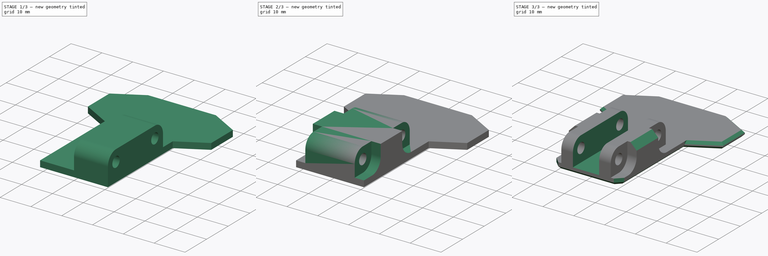
[diagram: build sequence overview — one tinted view per stage of 3, left to right]
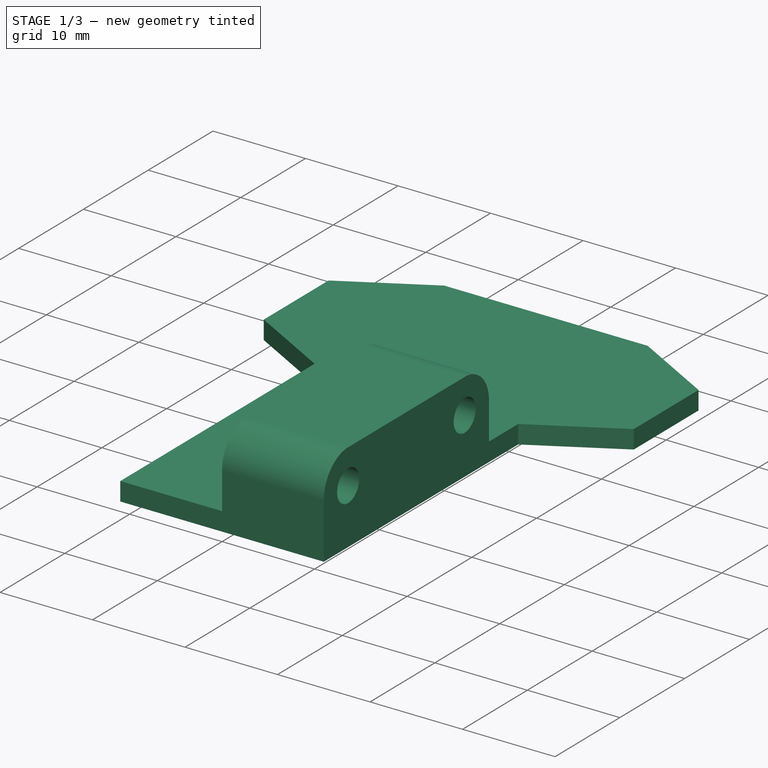
[diagram: stage 1 of 3 — iso view after this stage's code; geometry added in this stage tinted green]
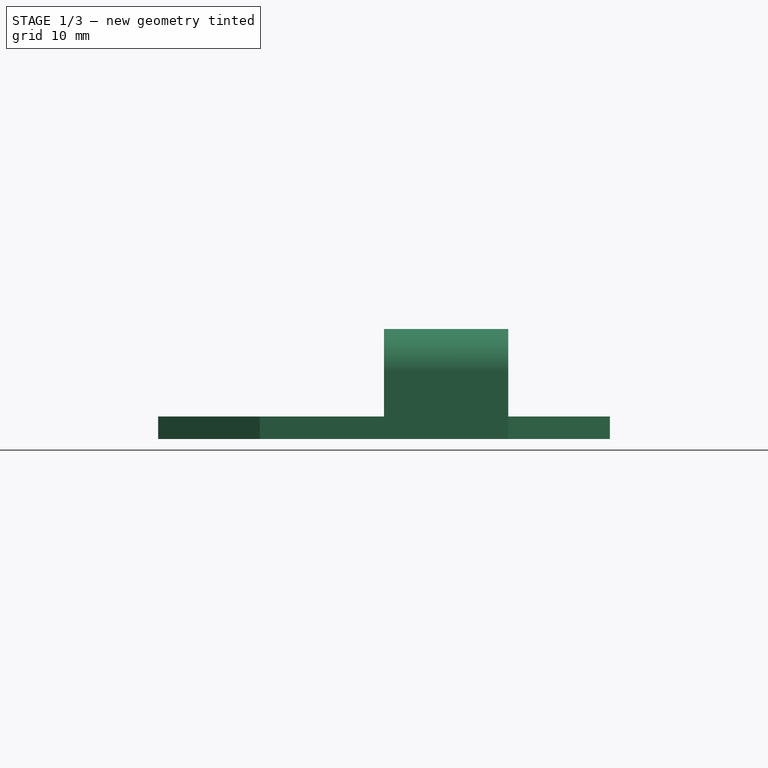
[diagram: stage 1 of 3 — front view after this stage's code; geometry added in this stage tinted green]
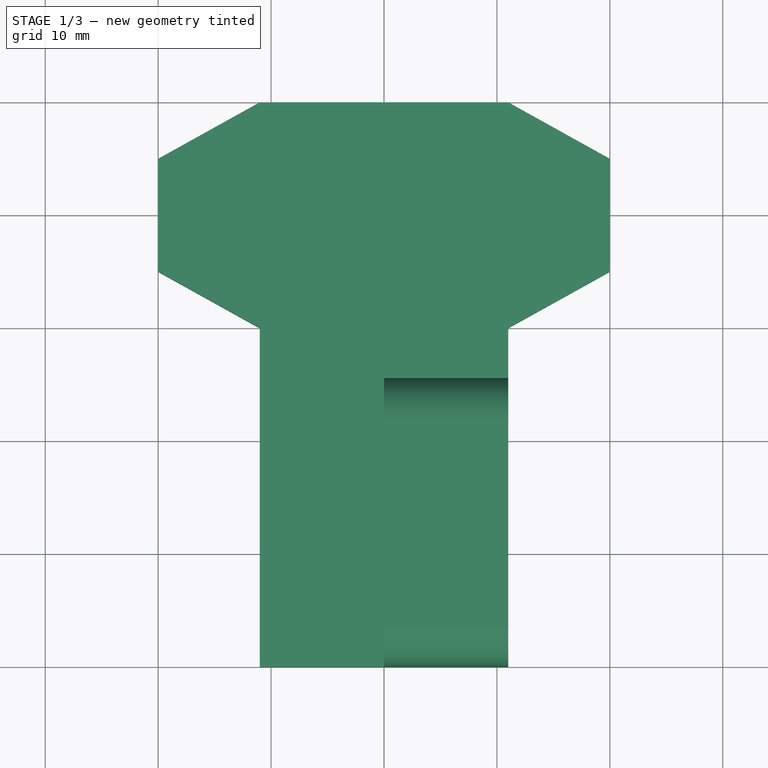
[diagram: stage 1 of 3 — top view after this stage's code; geometry added in this stage tinted green]
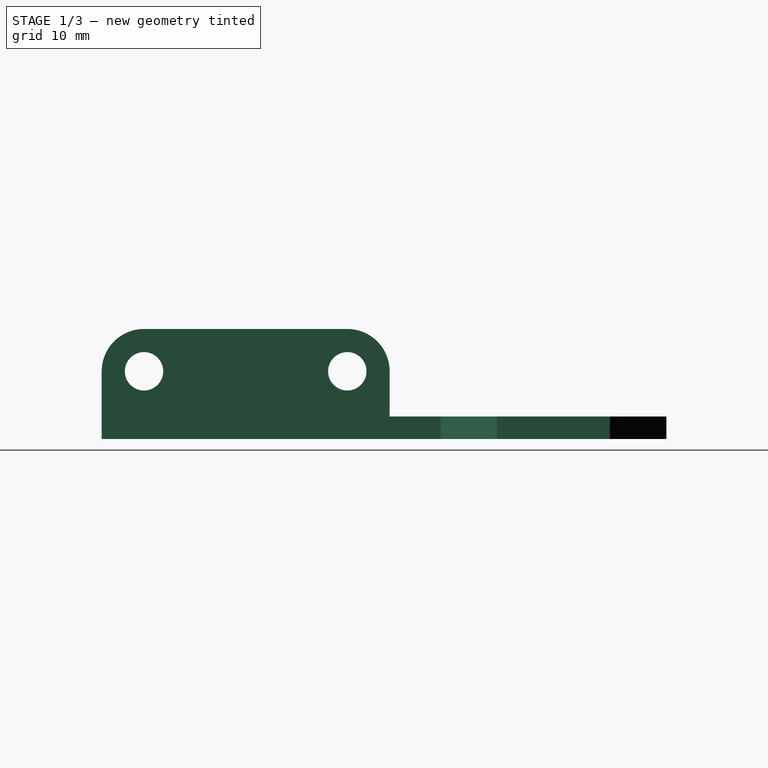
[diagram: stage 1 of 3 — right view after this stage's code; geometry added in this stage tinted green]
FCSTD DOCUMENT  (FreeCAD 1.0R39109 (Git))
Label: LoadingLeverGrip.stl
License: All rights reserved
LicenseURL: http://en.wikipedia.org/wiki/All_rights_reserved
objects: Sketcher::SketchObject×5, PartDesign::Pad×2, PartDesign::Pocket×2, PartDesign::Chamfer×2, PartDesign::Hole×1, PartDesign::Mirrored×1, PartDesign::Body×1, App::Part×1
note: 34 computed .brp shape members not serialized (recipe doc carries the construction recipe); baked Part::Feature solids carry a one-line shape summary decoded from their .brp

FEATURE [Sketcher::SketchObject] Sketch
  ArcFitTolerance = 1e-06
  AttachmentSupport = -> [XY_Plane]
  FullyConstrained = true
  MakeInternals = false
  MapMode = 5
  sketch-geometry (10):
    g0: LineSegment StartX=-11 StartY=0 StartZ=0 EndX=-11 EndY=30 EndZ=0
    g1: LineSegment StartX=-11 StartY=30 StartZ=0 EndX=-20 EndY=35 EndZ=0
    g2: LineSegment StartX=-20 StartY=35 StartZ=0 EndX=-20 EndY=45 EndZ=0
    g3: LineSegment StartX=-20 StartY=45 StartZ=0 EndX=-11 EndY=50 EndZ=0
    g4: LineSegment StartX=-11 StartY=50 StartZ=0 EndX=11 EndY=50 EndZ=0
    g5: LineSegment StartX=11 StartY=50 StartZ=0 EndX=20 EndY=45 EndZ=0
    g6: LineSegment StartX=20 StartY=45 StartZ=0 EndX=20 EndY=35 EndZ=0
    g7: LineSegment StartX=20 StartY=35 StartZ=0 EndX=11 EndY=30 EndZ=0
    g8: LineSegment StartX=11 StartY=30 StartZ=0 EndX=11 EndY=0 EndZ=0
    g9: LineSegment StartX=-11 StartY=0 StartZ=0 EndX=11 EndY=0 EndZ=0
  constraints (28):
    c: Vertical(g0)
    c: Coincident(g0,g1)
    c: Coincident(g1,g2)
    c: Vertical(g2)
    c: Coincident(g2,g3)
    c: Coincident(g3,g4)
    c: Coincident(g4,g5)
    c: Coincident(g5,g6)
    c: Coincident(g6,g7)
    c: Coincident(g7,g8)
    c: Vertical(g8)
    c: Horizontal(g7,g0)
    c: Symmetric(g6,g1,g-2)
    c: Vertical(g6)
    c: Equal(g2,g6)
    c: Symmetric(g4,g3,g-2)
    c: Equal(g3,g1)
    c: DistanceX(g2,g5) = 40
    c: DistanceY(g6,g6) = 10
    c: DistanceY(g7,g6) = 5
    c: Vertical(g4,g7)
    c: Vertical(g3,g0)
    c: DistanceX(g0,g8) = 22
    c: Coincident(g9,g0)
    c: Coincident(g9,g8)
    c: Horizontal(g9)
    c: DistanceY(g-1,g7) = 30
    c: PointOnObject(g-1,g9)
FEATURE [PartDesign::Pad] Pad
  Direction = (0,0,1)
  Length = 2
  Length2 = 10
  Profile = -> Sketch
  ReferenceAxis = -> Sketch [N_Axis]
  Refine = true
  Reversed = true
  Suppressed = false
  Type = 0
FEATURE [Sketcher::SketchObject] Sketch001
  ArcFitTolerance = 1e-06
  AttachmentSupport = -> [YZ_Plane]
  FullyConstrained = true
  MakeInternals = false
  MapMode = 5
  Placement = pos=(0,0,0) rot=(0.57735,0.57735,0.57735;2.0944rad)
  sketch-geometry (6):
    g0: ArcOfCircle CenterX=3.75 CenterY=4 CenterZ=0 NormalX=0 NormalY=0 NormalZ=1 AngleXU=0 Radius=3.75 StartAngle=1.5708 EndAngle=3.14159
    g1: ArcOfCircle CenterX=21.75 CenterY=4 CenterZ=0 NormalX=0 NormalY=0 NormalZ=1 AngleXU=0 Radius=3.75 StartAngle=0 EndAngle=1.5708
    g2: LineSegment StartX=3.75 StartY=7.75 StartZ=0 EndX=21.75 EndY=7.75 EndZ=0
    g3: LineSegment StartX=25.5 StartY=0 StartZ=0 EndX=25.5 EndY=4 EndZ=0
    g4: LineSegment StartX=0 StartY=4 StartZ=0 EndX=0 EndY=0 EndZ=0
    g5: LineSegment StartX=0 StartY=0 StartZ=0 EndX=25.5 EndY=0 EndZ=0
  constraints (16):
    c: Horizontal(g2)
    c: PointOnObject(g3,g-1)
    c: Vertical(g3)
    c: Tangent(g3,g1) = -1.5708
    c: Tangent(g2,g1) = 1.5708
    c: Tangent(g2,g0) = 1.5708
    c: Equal(g0,g1)
    c: DistanceX(g0,g1) = 18
    c: Radius(g1) = 3.75
    c: DistanceY(g-1,g0) = 4
    c: PointOnObject(g5,g-1)
    c: Tangent(g4,g0) = -1.5708
    c: DistanceX(g-1,g0) = 3.75
    c: Coincident(g5,g3)
    c: Coincident(g5,g4)
    c: Vertical(g4)
FEATURE [PartDesign::Pad] Pad001
  BaseFeature = -> Pad
  Direction = (1,0,0)
  Length = 6
  Length2 = 10
  Profile = -> Sketch001
  ReferenceAxis = -> Sketch001 [N_Axis]
  Refine = true
  Suppressed = false
  Type = 3
  UpToFace = -> Pad [Face9]
FEATURE [Sketcher::SketchObject] Sketch002
  ArcFitTolerance = 1e-06
  AttachmentOffset = pos=(0,0,11) rot=(0,0,1;0rad)
  AttachmentSupport = -> [YZ_Plane]
  FullyConstrained = true
  MakeInternals = false
  MapMode = 5
  Placement = pos=(11,0,0) rot=(0.57735,0.57735,0.57735;2.0944rad)
  sketch-geometry (2):
    g0: Circle CenterX=3.75 CenterY=4 CenterZ=0 NormalX=0 NormalY=0 NormalZ=1 AngleXU=0 Radius=1.5
    g1: Circle CenterX=21.75 CenterY=4 CenterZ=0 NormalX=0 NormalY=0 NormalZ=1 AngleXU=0 Radius=1.5
  constraints (6):
    c: Horizontal(g1,g0)
    c: DistanceX(g0,g1) = 18
    c: DistanceX(g-1,g0) = 3.75
    c: Equal(g0,g1)
    c: Diameter(g1) = 3
    c: DistanceY(g-1,g0) = 4
FEATURE [PartDesign::Hole] Hole
  BaseFeature = -> Pad001
  CustomThreadClearance = 0
  Depth = 25
  DepthType = 0
  Diameter = 3.4
  DrillForDepth = false
  DrillPoint = 1
  DrillPointAngle = 118
  HoleCutCountersinkAngle = 90
  HoleCutCustomValues = false
  HoleCutDepth = 0
  HoleCutDiameter = 6.1
  HoleCutType = 0
  ModelThread = false
  Profile = -> Sketch002
  Refine = true
  Suppressed = false
  Tapered = false
  TaperedAngle = 90
  ThreadClass = 0
  ThreadDepth = 25
  ThreadDepthType = 0
  ThreadDirection = 0
  ThreadFit = 0
  ThreadSize = 9
  ThreadType = 1
  Threaded = false
  UseCustomThreadClearance = false
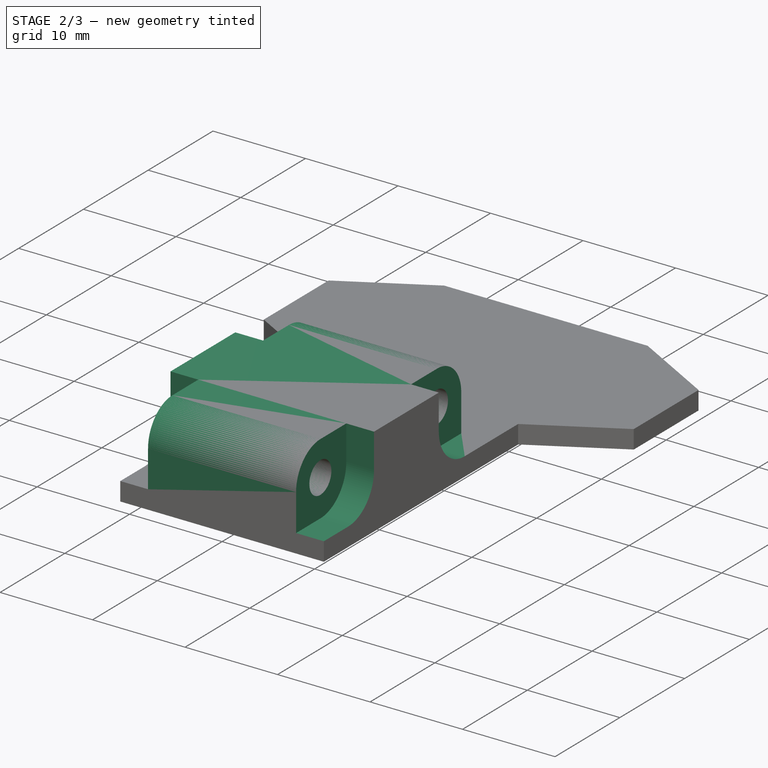
[diagram: stage 2 of 3 — iso view after this stage's code; geometry added in this stage tinted green]
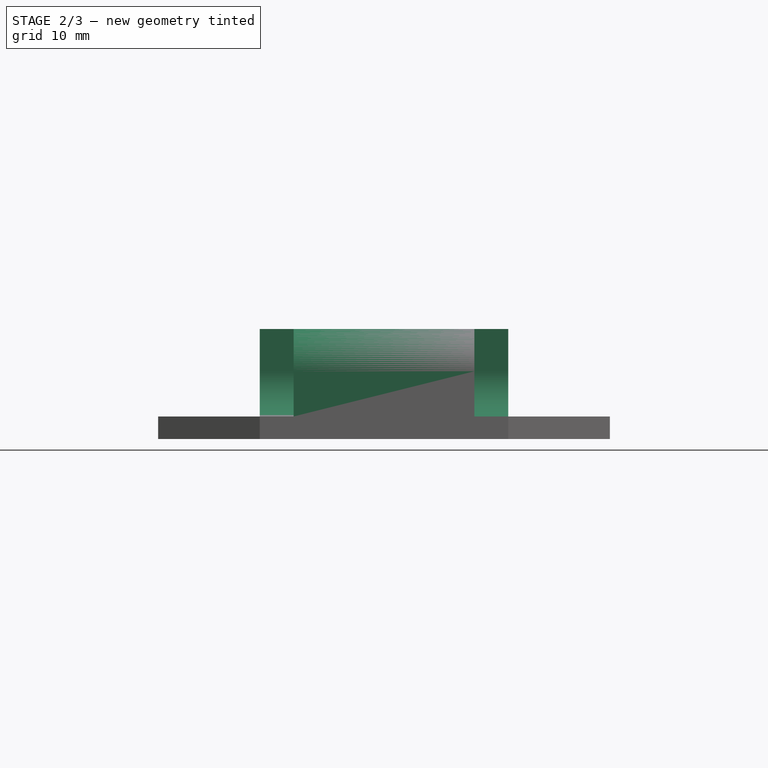
[diagram: stage 2 of 3 — front view after this stage's code; geometry added in this stage tinted green]
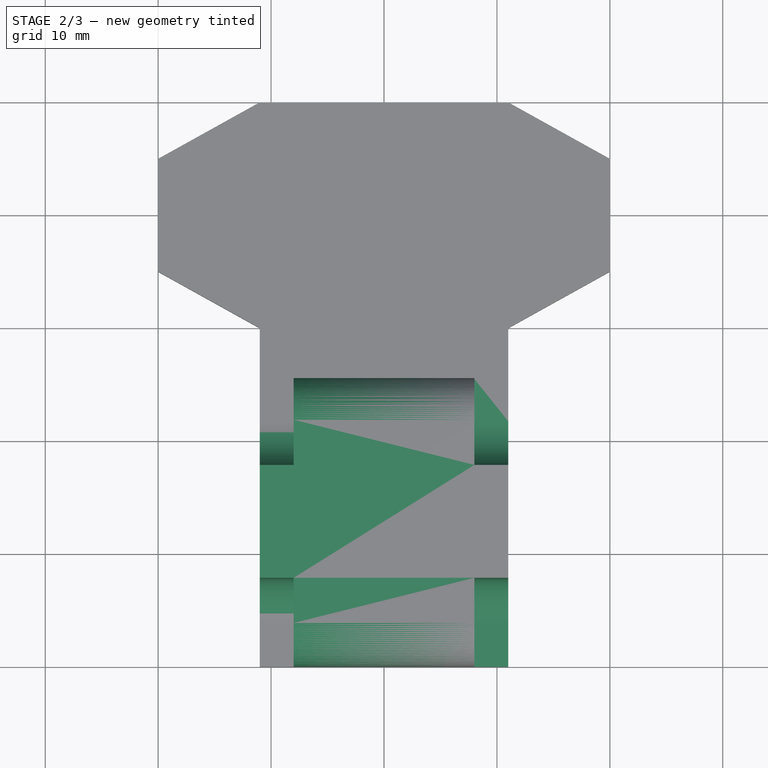
[diagram: stage 2 of 3 — top view after this stage's code; geometry added in this stage tinted green]
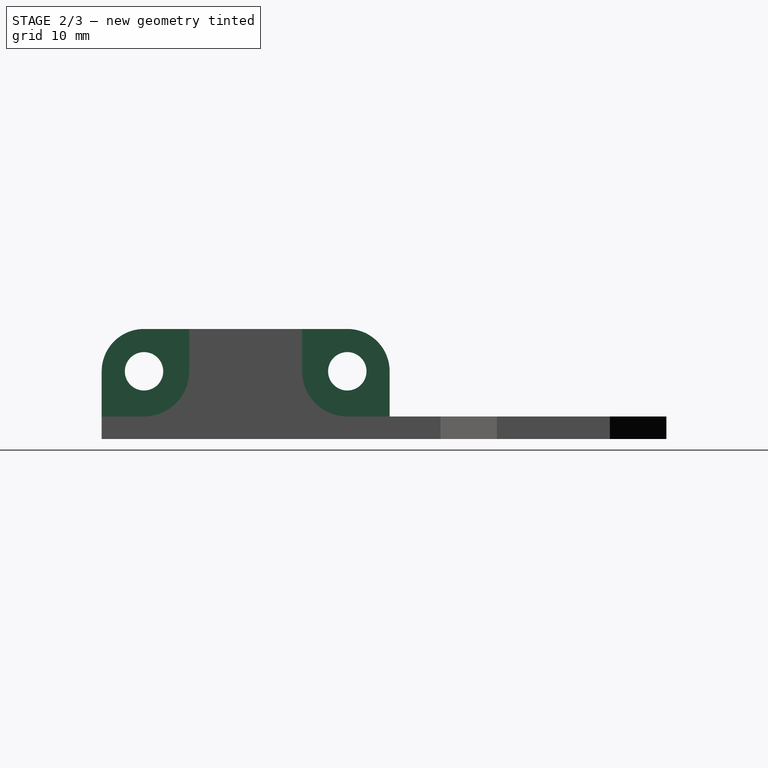
[diagram: stage 2 of 3 — right view after this stage's code; geometry added in this stage tinted green]
FEATURE [Sketcher::SketchObject] Sketch003
  ArcFitTolerance = 1e-06
  AttachmentOffset = pos=(0,0,8) rot=(0,0,1;0rad)
  AttachmentSupport = -> [YZ_Plane]
  FullyConstrained = true
  MakeInternals = false
  MapMode = 5
  Placement = pos=(8,0,0) rot=(0.57735,0.57735,0.57735;2.0944rad)
  sketch-geometry (10):
    g0: ArcOfCircle CenterX=3.75 CenterY=4 CenterZ=0 NormalX=0 NormalY=0 NormalZ=1 AngleXU=0 Radius=4 StartAngle=4.71239 EndAngle=6.28319
    g1: LineSegment StartX=7.75 StartY=4 StartZ=0 EndX=7.75 EndY=9 EndZ=0
    g2: LineSegment StartX=7.75 StartY=9 StartZ=0 EndX=-1.25 EndY=9 EndZ=0
    g3: ArcOfCircle CenterX=21.75 CenterY=4 CenterZ=0 NormalX=0 NormalY=0 NormalZ=1 AngleXU=0 Radius=4 StartAngle=3.14159 EndAngle=4.71239
    g4: LineSegment StartX=17.75 StartY=4 StartZ=0 EndX=17.75 EndY=9 EndZ=0
    g5: LineSegment StartX=17.75 StartY=9 StartZ=0 EndX=26.75 EndY=9 EndZ=0
    g6: LineSegment StartX=26.75 StartY=9 StartZ=0 EndX=26.75 EndY=0 EndZ=0
    g7: LineSegment StartX=26.75 StartY=0 StartZ=0 EndX=21.75 EndY=0 EndZ=0
    g8: LineSegment StartX=-1.25 StartY=-1.47e-13 StartZ=0 EndX=-1.25 EndY=9 EndZ=0
    g9: LineSegment StartX=-1.25 StartY=-1.47e-13 StartZ=0 EndX=3.75 EndY=-1.47e-13 EndZ=0
  constraints (29):
    c: Vertical(g1)
    c: Coincident(g2,g1)
    c: Horizontal(g2)
    c: Tangent(g1,g0) = -1.5708
    c: DistanceY(g-1,g0) = 4
    c: DistanceX(g-1,g0) = 3.75
    c: Radius(g0) = 4
    c: DistanceY(g1,g1) = 5
    c: Horizontal(g3,g0)
    c: Equal(g3,g0)
    c: Vertical(g4)
    c: Horizontal(g5)
    c: Coincident(g6,g5)
    c: PointOnObject(g6,g-1)
    c: Vertical(g6)
    c: Coincident(g7,g6)
    c: Coincident(g7,g3)
    c: Horizontal(g7)
    c: Equal(g4,g1)
    c: DistanceX(g0,g3) = 18
    c: Coincident(g5,g4)
    c: Tangent(g4,g3) = 1.5708
    c: DistanceX(g7,g7) = 5
    c: Coincident(g8,g2)
    c: Vertical(g8)
    c: Coincident(g9,g8)
    c: Tangent(g9,g0) = -1.5708
    c: Horizontal(g9)
    c: Equal(g9,g1)
FEATURE [PartDesign::Pocket] Pocket
  BaseFeature = -> Hole
  Direction = (-1,0,0)
  Length = 5
  Length2 = 5
  Profile = -> Sketch003
  ReferenceAxis = -> Sketch003 [N_Axis]
  Refine = true
  Reversed = true
  Suppressed = false
  Type = 0
FEATURE [PartDesign::Mirrored] Mirrored
  BaseFeature = -> Pocket
  MirrorPlane = -> YZ_Plane
  Originals = -> [Pad001,Hole,Pocket]
  Refine = true
  Suppressed = false
  TransformMode = 0
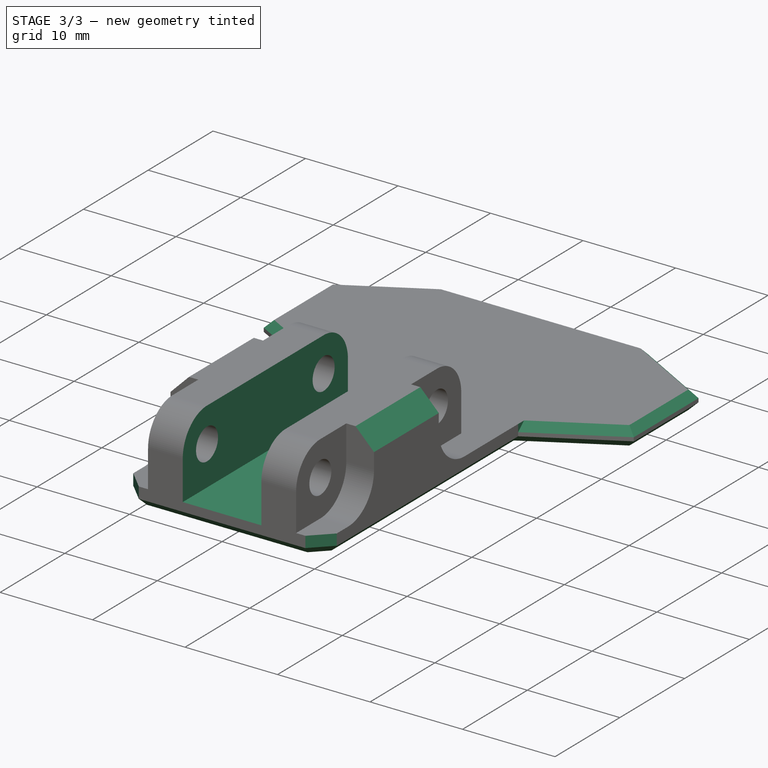
[diagram: stage 3 of 3 — iso view after this stage's code; geometry added in this stage tinted green]
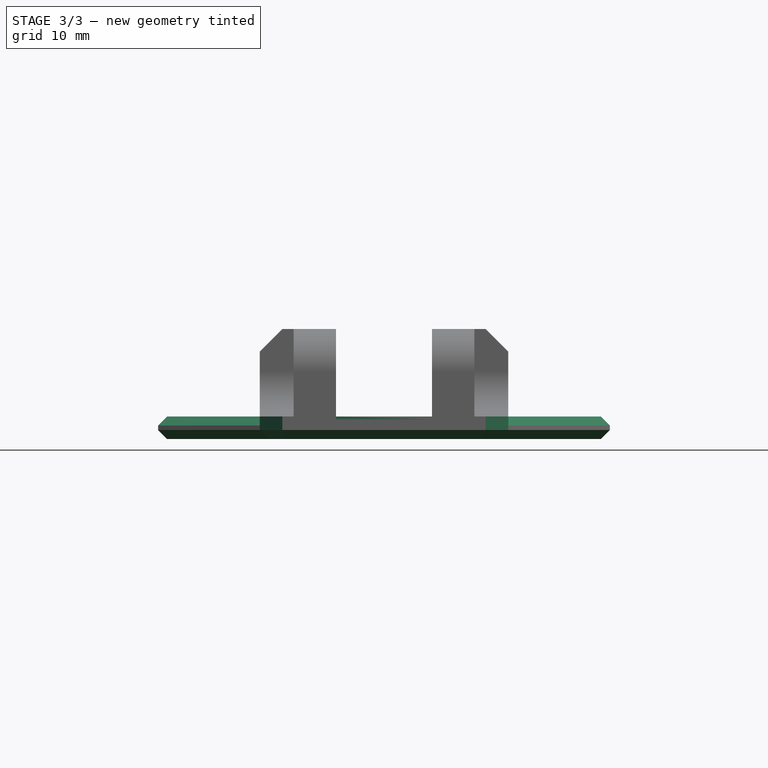
[diagram: stage 3 of 3 — front view after this stage's code; geometry added in this stage tinted green]
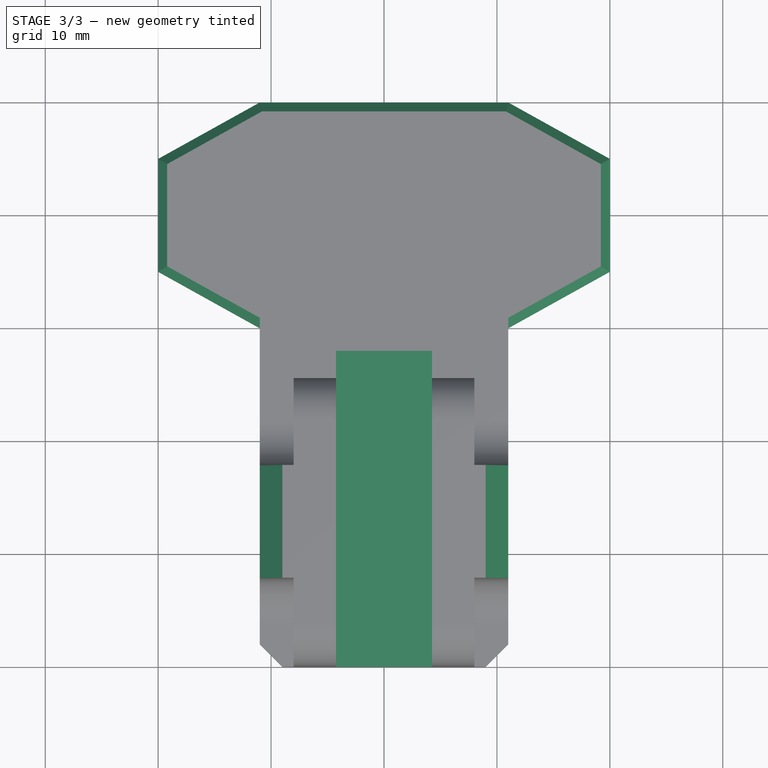
[diagram: stage 3 of 3 — top view after this stage's code; geometry added in this stage tinted green]
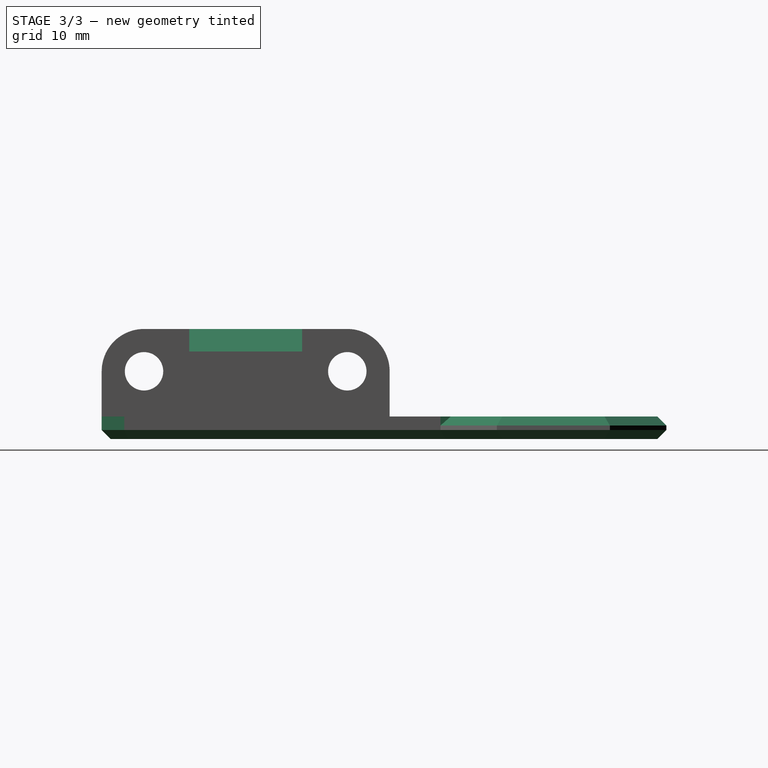
[diagram: stage 3 of 3 — right view after this stage's code; geometry added in this stage tinted green]
FEATURE [Sketcher::SketchObject] Sketch004
  ArcFitTolerance = 1e-06
  AttachmentSupport = -> [XZ_Plane]
  FullyConstrained = true
  MakeInternals = false
  MapMode = 5
  Placement = pos=(0,0,0) rot=(1,0,0;1.5708rad)
  sketch-geometry (4):
    g0: LineSegment StartX=-4.25 StartY=20 StartZ=0 EndX=-4.25 EndY=-0.25 EndZ=0
    g1: LineSegment StartX=-4.25 StartY=-0.25 StartZ=0 EndX=4.25 EndY=-0.25 EndZ=0
    g2: LineSegment StartX=4.25 StartY=-0.25 StartZ=0 EndX=4.25 EndY=20 EndZ=0
    g3: LineSegment StartX=4.25 StartY=20 StartZ=0 EndX=-4.25 EndY=20 EndZ=0
  constraints (11):
    c: Coincident(g0,g1)
    c: Coincident(g1,g2)
    c: Coincident(g2,g3)
    c: Coincident(g3,g0)
    c: Vertical(g0)
    c: Vertical(g2)
    c: Horizontal(g1)
    c: DistanceX(g3,g3) = 8.5
    c: Symmetric(g2,g0,g-2)
    c: DistanceY(g-1,g0) = 20
    c: DistanceY(g1,g-1) = 0.25
FEATURE [PartDesign::Pocket] Pocket001
  BaseFeature = -> Mirrored
  Direction = (0,1,-2e-16)
  Length = 28
  Length2 = 5
  Profile = -> Sketch004
  ReferenceAxis = -> Sketch004 [N_Axis]
  Refine = true
  Suppressed = false
  Type = 4
FEATURE [PartDesign::Chamfer] Chamfer
  Angle = 45
  Base = -> Pocket001 [Edge15,Edge94,Edge28,Edge13]
  BaseFeature = -> Pocket001
  ChamferType = 0
  FlipDirection = false
  Refine = true
  Size = 2
  Size2 = 1
  SupportTransform = false
  Suppressed = false
  UseAllEdges = false
FEATURE [PartDesign::Chamfer] Chamfer001
  Angle = 45
  Base = -> Chamfer [Face7,Edge55,Edge54,Edge53,Edge52,Edge51,Edge50,Edge45]
  BaseFeature = -> Chamfer
  ChamferType = 0
  FlipDirection = false
  Refine = true
  Size = 0.8
  Size2 = 1
  SupportTransform = false
  Suppressed = false
  UseAllEdges = false
FEATURE [PartDesign::Body] Body
  AllowCompound = false
  Group = -> [Sketch,Pad,Sketch001,Pad001,Sketch002,Hole,Sketch003,Pocket,Mirrored,Sketch004,Pocket001,Chamfer,Chamfer001]
  Origin = -> Origin
  Tip = -> Chamfer001
FEATURE [App::Part] Part  label="LoadingLeverGrip.stl"
  Group = -> [Body]
  Origin = -> Origin001
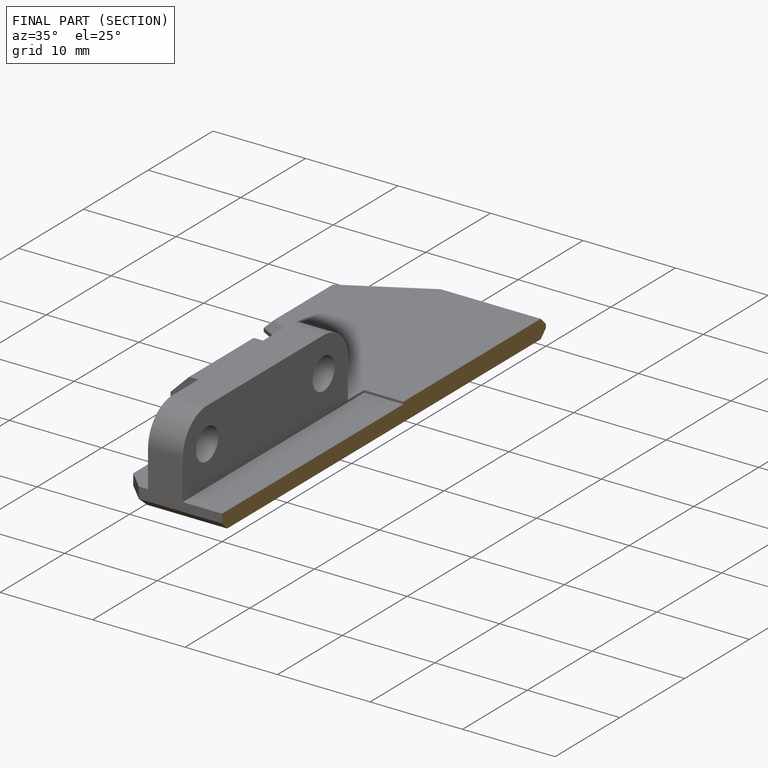
[diagram: finished part — half-section view (interior)]
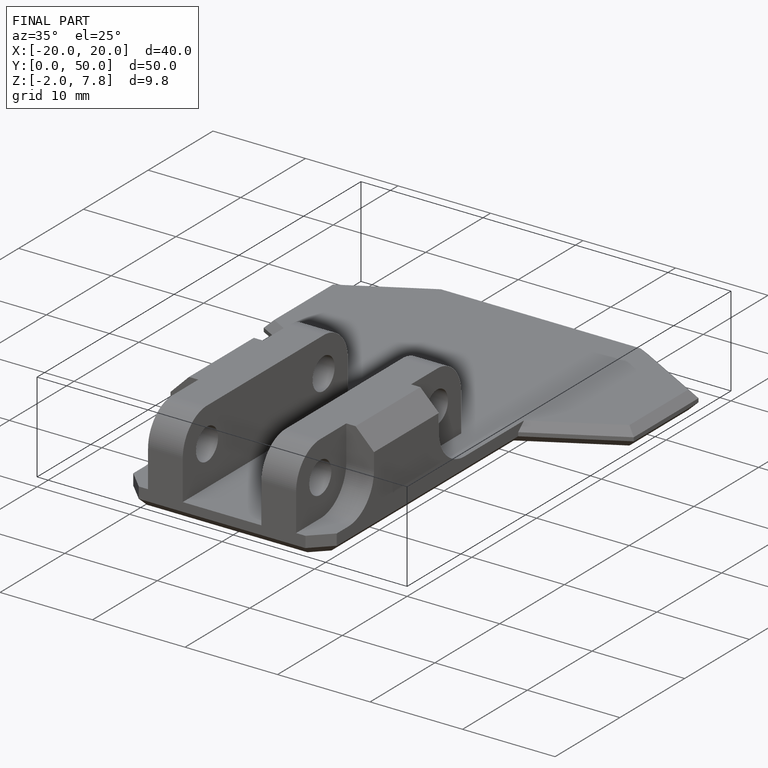
[diagram: finished part — iso view with bounding-box wireframe]
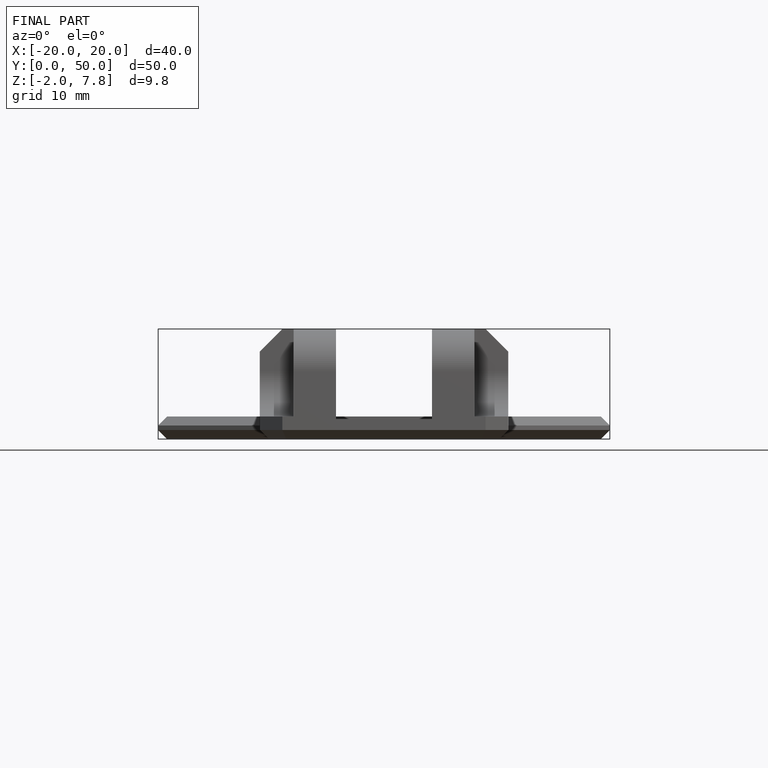
[diagram: finished part — front view with bounding-box wireframe]
